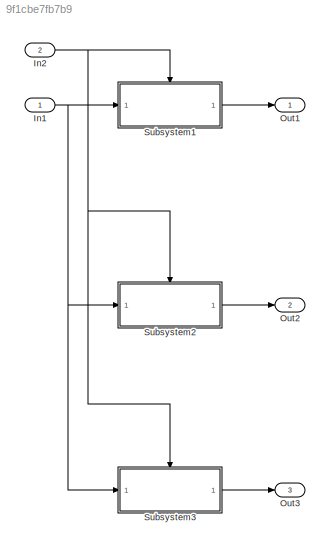
MODEL slx_9f1cbe7fb7b9
KIND model
CONFIG AbsTol = auto
CONFIG EnableMultiTasking = on
CONFIG FixedStep = 0.200000
CONFIG MaxStep = auto
CONFIG MinStep = auto
CONFIG RelTol = 1e-3
CONFIG SampleTimeConstraint = Unconstrained
CONFIG Solver = FixedStepDiscrete
CONFIG SolverName = FixedStepDiscrete
CONFIG StartTime = 0.0
CONFIG StopTime = 10.0
BLOCK [Inport] In1
  IconDisplay = Port number
  OutDataTypeStr = double
BLOCK [Inport] In2
  IconDisplay = Port number
  OutDataTypeStr = boolean
  Port = 2
BLOCK [Outport] Out1
  IconDisplay = Port number
BLOCK [Outport] Out2
  IconDisplay = Port number
  Port = 2
BLOCK [Outport] Out3
  IconDisplay = Port number
  Port = 3
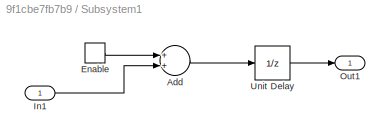
BLOCK [SubSystem] Subsystem1
  Ports = [1, 1, 1]
  RequestExecContextInheritance = off
  TreatAsAtomicUnit = on
  Variant = off
BLOCK [Sum] Subsystem1/Add
  InputSameDT = off
  OutDataTypeStr = Inherit: Inherit via internal rule
  Ports = [2, 1]
  SaturateOnIntegerOverflow = off
BLOCK [EnablePort] Subsystem1/Enable
  Ports = [0, 1]
  ShowOutputPort = on
  StatesWhenEnabling = reset
BLOCK [Inport] Subsystem1/In1
  IconDisplay = Port number
BLOCK [Outport] Subsystem1/Out1
  IconDisplay = Port number
BLOCK [UnitDelay] Subsystem1/Unit Delay
  InputProcessing = Elements as channels (sample based)
  SampleTime = -1
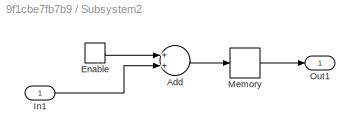
BLOCK [SubSystem] Subsystem2
  Ports = [1, 1, 1]
  RequestExecContextInheritance = off
  TreatAsAtomicUnit = on
  Variant = off
BLOCK [Sum] Subsystem2/Add
  InputSameDT = off
  OutDataTypeStr = Inherit: Inherit via internal rule
  Ports = [2, 1]
  SaturateOnIntegerOverflow = off
BLOCK [EnablePort] Subsystem2/Enable
  Ports = [0, 1]
  ShowOutputPort = on
  StatesWhenEnabling = reset
BLOCK [Inport] Subsystem2/In1
  IconDisplay = Port number
BLOCK [Memory] Subsystem2/Memory
BLOCK [Outport] Subsystem2/Out1
  IconDisplay = Port number
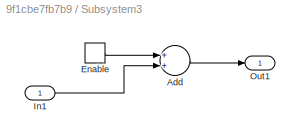
BLOCK [SubSystem] Subsystem3
  Ports = [1, 1, 1]
  RequestExecContextInheritance = off
  TreatAsAtomicUnit = on
  Variant = off
BLOCK [Sum] Subsystem3/Add
  InputSameDT = off
  OutDataTypeStr = Inherit: Inherit via internal rule
  Ports = [2, 1]
  SaturateOnIntegerOverflow = off
BLOCK [EnablePort] Subsystem3/Enable
  Ports = [0, 1]
  ShowOutputPort = on
BLOCK [Inport] Subsystem3/In1
  IconDisplay = Port number
BLOCK [Outport] Subsystem3/Out1
  IconDisplay = Port number
NET In1:1 -> Subsystem1:1, Subsystem2:1, Subsystem3:1
NET In2:1 -> Subsystem1:enable, Subsystem2:enable, Subsystem3:enable
LINE Subsystem1/Add:1 -> Subsystem1/Unit Delay:1
LINE Subsystem1/Enable:1 -> Subsystem1/Add:1
LINE Subsystem1/In1:1 -> Subsystem1/Add:2
LINE Subsystem1/Unit Delay:1 -> Subsystem1/Out1:1
LINE Subsystem1:1 -> Out1:1
LINE Subsystem2/Add:1 -> Subsystem2/Memory:1
LINE Subsystem2/Enable:1 -> Subsystem2/Add:1
LINE Subsystem2/In1:1 -> Subsystem2/Add:2
LINE Subsystem2/Memory:1 -> Subsystem2/Out1:1
LINE Subsystem2:1 -> Out2:1
LINE Subsystem3/Add:1 -> Subsystem3/Out1:1
LINE Subsystem3/Enable:1 -> Subsystem3/Add:1
LINE Subsystem3/In1:1 -> Subsystem3/Add:2
LINE Subsystem3:1 -> Out3:1
note: NET lines group one-source signal fan-out (src -> all destinations, sorted); 1:1 wires keep LINE
